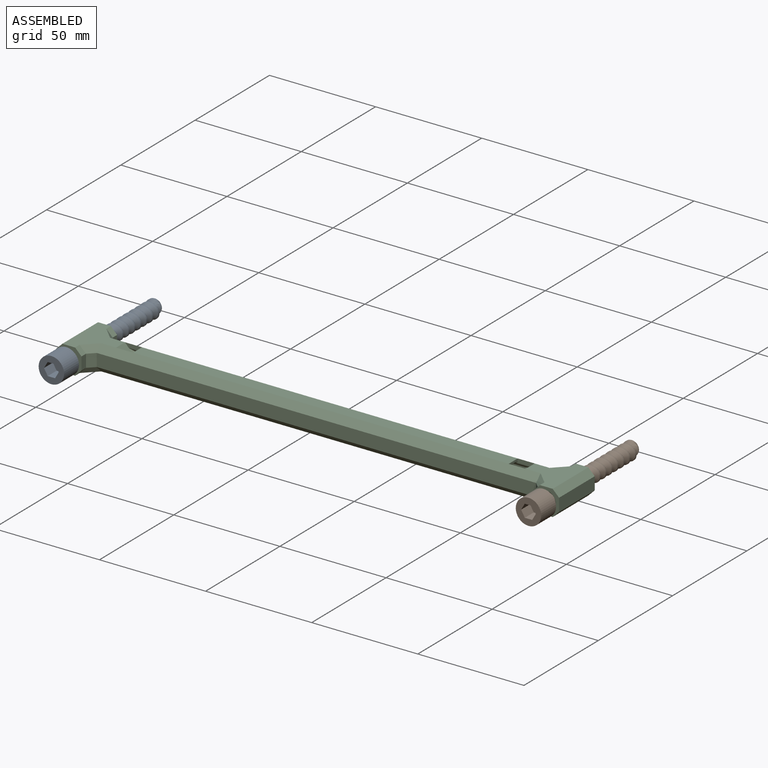
[diagram: assembled view]
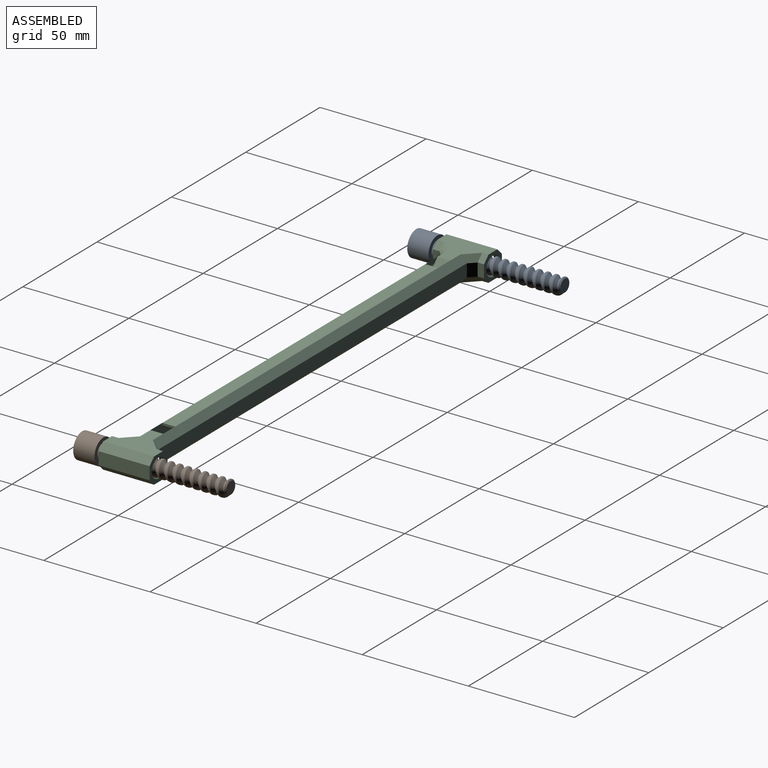
[diagram: assembled view, second angle]
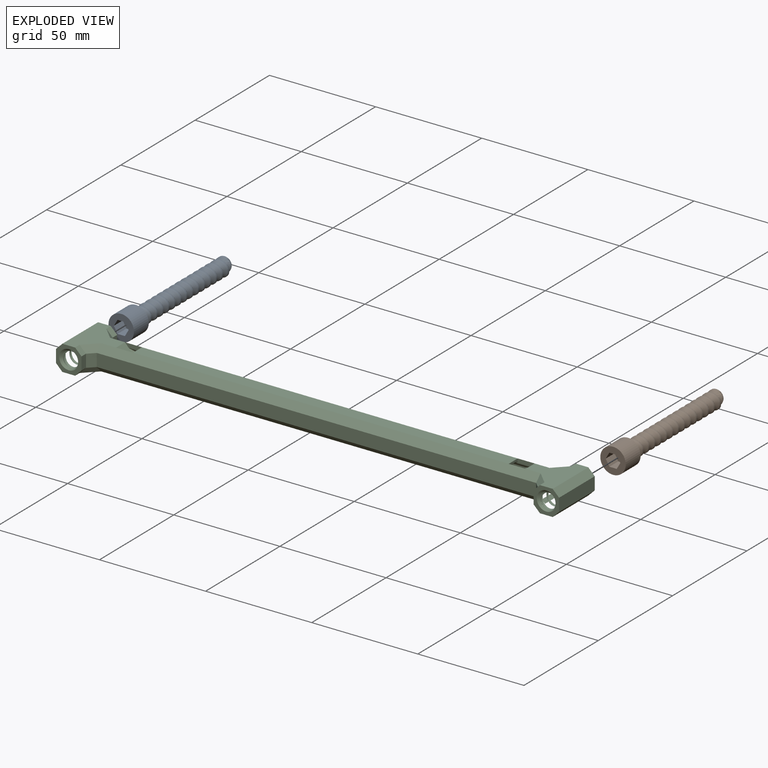
[diagram: exploded view]
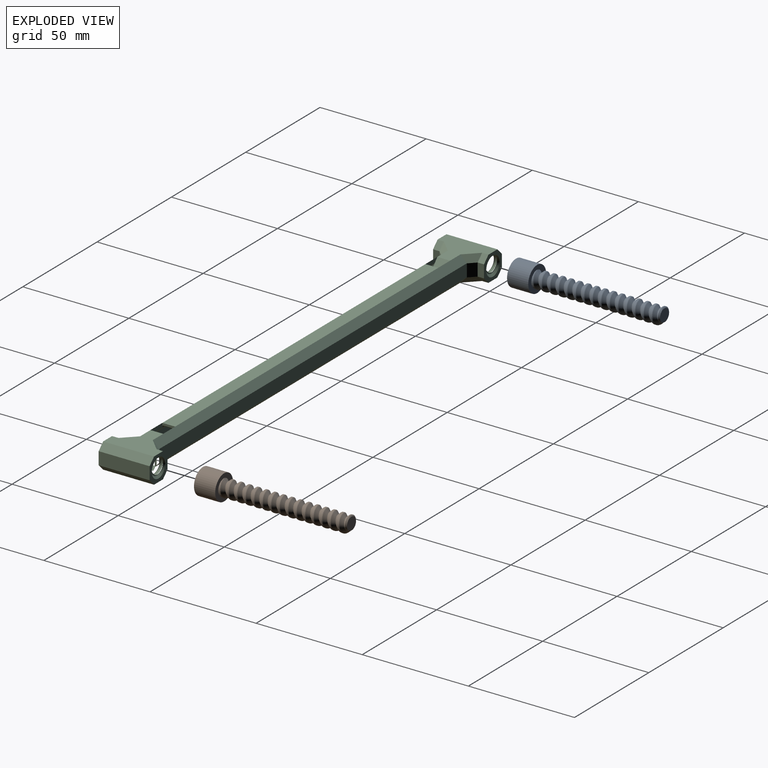
[diagram: exploded view, second angle]
ASSEMBLY  parts=3 mates=2
PART A: 19 faces, bbox 12.6x12.6x72.3 mm
  f0: cylinder r=4mm len=59.54mm, axis (0,0,-1), area 216.1mm2, adj f2,f15,f16,f17,f18
  f1: cylinder r=6mm len=12mm, axis (0,0,-1), area 377mm2, adj f2,f3
  f2: plane 12.64x12.64mm, normal (0,0,1), area 74mm2, adj f0,f1,f12,f13,f17,f18
  f3: plane 12x12mm, normal (0,0,-1), area 81.9mm2, adj f1,f4,f5,f6,f7,f8,f9
  f4: plane 6x3.46mm, normal (0,-1,0), area 20.8mm2, adj f3,f5,f9,f10
  f5: plane 6x3mm, normal (0.87,-0.5,0), area 20.8mm2, adj f3,f4,f6,f10
  f6: plane 6x3mm, normal (0.87,0.5,0), area 20.8mm2, adj f3,f5,f7,f10
  f7: plane 6x3.46mm, normal (0,1,0), area 20.8mm2, adj f3,f6,f8,f10
  f8: plane 6x3mm, normal (-0.87,0.5,0), area 20.8mm2, adj f3,f7,f9,f10
  f9: plane 6x3mm, normal (-0.87,-0.5,0), area 20.8mm2, adj f3,f4,f8,f10
  f10: plane 6.93x6mm, normal (0,0,-1), area 31.2mm2, adj f4,f5,f6,f7,f8,f9
  f11: plane 6.05x5.79mm, normal (0,0,1), area 27.5mm2, adj f14,f15,f16
  f12: bspline ~62.83x9.24mm, area 554.2mm2, adj f2,f13,f15,f18
  f13: bspline ~63.29x9.24mm, area 560.8mm2, adj f2,f12,f14,f15,f16,f17
  f14: bspline ~6.68x3.81mm, area 2.9mm2, adj f11,f13,f15,f16
  f15: bspline ~6.6x3.62mm, area 6.8mm2, adj f0,f11,f12,f13,f14,f16,f18
  f16: cone r=3.54mm half-angle=45deg, axis (0,0,-1), area 2.5mm2, adj f0,f11,f13,f14,f15,f17
  f17: bspline ~60.41x8.01mm, area 137.2mm2, adj f0,f2,f13,f16
  f18: bspline ~60.12x8.01mm, area 136.6mm2, adj f0,f2,f12,f15
PART B: same geometry as A
PART C: 132 faces, bbox 237x24.6x12 mm
  f0: plane 174.48x4.76mm, normal (0,0,1), area 830.1mm2, adj f5,f8,f86,f87
  f1: plane 8.35x1.91mm, normal (0,-1,0), area 13.8mm2, adj f9,f41,f76,f83,f87
  f2: plane 8.35x1.91mm, normal (0,1,0), area 13.8mm2, adj f10,f52,f76,f85,f87
  f3: plane 188.61x2.12mm, normal (0,-0.71,-0.71), area 546.4mm2, adj f6,f9,f77,f78,f79,f83,f89,f91
  f4: plane 188.61x2.12mm, normal (0,0.71,-0.71), area 546.4mm2, adj f7,f10,f77,f81,f82,f85,f88,f90
  f5: plane 175.58x2.12mm, normal (0,-0.71,0.71), area 524.8mm2, adj f0,f6,f86,f87,f89,f91
  f6: plane 182.61x4.76mm, normal (0,-1,0), area 848.8mm2, adj f3,f5,f89,f91
  f7: plane 182.61x4.76mm, normal (0,1,0), area 848.8mm2, adj f4,f8,f88,f90
  f8: plane 175.58x2.12mm, normal (0,0.71,0.71), area 524.8mm2, adj f0,f7,f86,f87,f88,f90
  f9: plane 6.81x0.35mm, normal (0,-0.92,-0.38), area 2.5mm2, adj f1,f3,f83,f89
  f10: plane 6.81x0.35mm, normal (0,0.92,-0.38), area 2.5mm2, adj f2,f4,f85,f88
  f11: plane 24x19mm, normal (0,0,1), area 258mm2, adj f23,f24,f40,f41,f44,f52,f53,f56
  f12: plane 177x6mm, normal (0,0,1), area 1062mm2, adj f41,f52,f75,f76
  f13: plane 24x19mm, normal (0,0,1), area 258mm2, adj f22,f31,f35,f38,f41,f47,f50,f52
  f14: cone r=4.5mm half-angle=45deg, axis (0,-1,0), area 22.2mm2, adj f31,f63,f64,f65,f72
  f15: plane 5.11x2.8mm, normal (0,-1,0), area 1.6mm2, adj f72
  f16: cone r=4.5mm half-angle=45deg, axis (0,-1,0), area 25mm2, adj f23,f66,f67,f68,f71
  f17: plane 3.55x3.52mm, normal (0,-1,0), area 1.3mm2, adj f71
  f18: cone r=4.5mm half-angle=45deg, axis (0,1,0), area 25.1mm2, adj f24,f66,f67,f68,f70
  f19: plane 3.55x3.52mm, normal (0,1,0), area 1.3mm2, adj f70
  f20: cone r=4.5mm half-angle=45deg, axis (0,1,0), area 22.2mm2, adj f22,f63,f64,f65,f69
  f21: plane 5.14x2.76mm, normal (0,1,0), area 1.6mm2, adj f69
  f22: plane 12x12mm, normal (0,1,0), area 62.4mm2, adj f13,f20,f25,f29,f30,f35,f37,f59
  f23: plane 12x12mm, normal (0,-1,0), area 62.4mm2, adj f11,f16,f25,f32,f34,f53,f54,f61
  f24: plane 12x12mm, normal (0,1,0), area 62.4mm2, adj f11,f18,f25,f33,f34,f40,f43,f61
  f25: plane 231x24mm, normal (0,0,-1), area 1674mm2, adj f22,f23,f24,f31,f37,f39,f42,f43
  f26: plane 207x6mm, normal (0,-1,0), area 1242mm2, adj f49,f52,f55,f58
  f27: plane 207x6mm, normal (0,1,0), area 1242mm2, adj f36,f41,f42,f46
  f28: plane 6x3mm, normal (1,0,0), area 18mm2, adj f31,f47,f48,f49
  f29: plane 6x3mm, normal (1,0,0), area 18mm2, adj f22,f35,f36,f37
  f30: plane 24x6mm, normal (-1,0,0), area 144mm2, adj f22,f31,f59,f60
  f31: plane 12x12mm, normal (0,-1,0), area 62.4mm2, adj f13,f14,f25,f28,f30,f47,f48,f59
  f32: plane 6x3mm, normal (-1,0,0), area 18mm2, adj f23,f53,f54,f58
  f33: plane 6x3mm, normal (-1,0,0), area 18mm2, adj f24,f40,f43,f46
  f34: plane 24x6mm, normal (1,0,0), area 144mm2, adj f23,f24,f61,f62
  f35: plane 3x3mm, normal (0.71,0,0.71), area 12.7mm2, adj f13,f22,f29,f38
  f36: plane 6x3mm, normal (0.71,0.71,0), area 25.5mm2, adj f27,f29,f38,f39
  f37: plane 3x3mm, normal (0.71,0,-0.71), area 12.7mm2, adj f22,f25,f29,f39
  f38: plane 6x6mm, normal (0.58,0.58,0.58), area 23.4mm2, adj f13,f35,f36,f41
  f39: plane 6x6mm, normal (0.58,0.58,-0.58), area 23.4mm2, adj f25,f36,f37,f42
  f40: plane 3x3mm, normal (-0.71,0,0.71), area 12.7mm2, adj f11,f24,f33,f44
  f41: plane 207x3mm, normal (0,0.71,0.71), area 878.2mm2, adj f1,f11,f12,f13,f27,f38,f44,f73
  f42: plane 207x3mm, normal (0,0.71,-0.71), area 878.2mm2, adj f25,f27,f39,f45
  f43: plane 3x3mm, normal (-0.71,0,-0.71), area 12.7mm2, adj f24,f25,f33,f45
  f44: plane 6x6mm, normal (-0.58,0.58,0.58), area 23.4mm2, adj f11,f40,f41,f46
  f45: plane 6x6mm, normal (-0.58,0.58,-0.58), area 23.4mm2, adj f25,f42,f43,f46
  f46: plane 6x3mm, normal (-0.71,0.71,0), area 25.5mm2, adj f27,f33,f44,f45
  f47: plane 3x3mm, normal (0.71,0,0.71), area 12.7mm2, adj f13,f28,f31,f50
  f48: plane 3x3mm, normal (0.71,0,-0.71), area 12.7mm2, adj f25,f28,f31,f51
  f49: plane 6x3mm, normal (0.71,-0.71,0), area 25.5mm2, adj f26,f28,f50,f51
  f50: plane 6x6mm, normal (0.58,-0.58,0.58), area 23.4mm2, adj f13,f47,f49,f52
  f51: plane 6x6mm, normal (0.58,-0.58,-0.58), area 23.4mm2, adj f25,f48,f49,f55
  f52: plane 207x3mm, normal (0,-0.71,0.71), area 878.2mm2, adj f2,f11,f12,f13,f26,f50,f56,f74
  f53: plane 3x3mm, normal (-0.71,0,0.71), area 12.7mm2, adj f11,f23,f32,f56
  f54: plane 3x3mm, normal (-0.71,0,-0.71), area 12.7mm2, adj f23,f25,f32,f57
  f55: plane 207x3mm, normal (0,-0.71,-0.71), area 878.2mm2, adj f25,f26,f51,f57
  f56: plane 6x6mm, normal (-0.58,-0.58,0.58), area 23.4mm2, adj f11,f52,f53,f58
  f57: plane 6x6mm, normal (-0.58,-0.58,-0.58), area 23.4mm2, adj f25,f54,f55,f58
  f58: plane 6x3mm, normal (-0.71,-0.71,0), area 25.5mm2, adj f26,f32,f56,f57
  f59: plane 24x3mm, normal (-0.71,0,0.71), area 101.8mm2, adj f13,f22,f30,f31
  f60: plane 24x3mm, normal (-0.71,0,-0.71), area 101.8mm2, adj f22,f25,f30,f31
  f61: plane 24x3mm, normal (0.71,0,0.71), area 101.8mm2, adj f11,f23,f24,f34
  f62: plane 24x3mm, normal (0.71,0,-0.71), area 101.8mm2, adj f23,f24,f25,f34
  f63: cylinder r=4.1mm len=23.79mm, axis (0,-1,0), area 90.5mm2, adj f14,f20,f64,f65
  f64: bspline ~24.48x8.21mm, area 66mm2, adj f14,f20,f63
  f65: bspline ~24.42x8.21mm, area 66mm2, adj f14,f20,f63
  f66: cylinder r=4.1mm len=23.2mm, axis (0,-1,0), area 93.5mm2, adj f16,f18,f67,f68
  f67: bspline ~23.89x8.21mm, area 65.1mm2, adj f16,f18,f66
  f68: bspline ~24.06x8.21mm, area 65.1mm2, adj f16,f18,f66
  f69: torus R=3.29mm, axis (0,1,0), area 3.5mm2, adj f20,f21
  f70: torus R=3.29mm, axis (0,1,0), area 3.2mm2, adj f18,f19
  f71: torus R=3.29mm, axis (0,-1,0), area 3.2mm2, adj f16,f17
  f72: torus R=3.29mm, axis (0,-1,0), area 3.5mm2, adj f14,f15
  f73: plane 8.35x1.91mm, normal (0,-1,0), area 13.8mm2, adj f41,f75,f78,f79,f86
  f74: plane 8.35x1.91mm, normal (0,1,0), area 13.8mm2, adj f52,f75,f81,f82,f86
  f75: plane 6x1.41mm, normal (-1,0,0), area 6.2mm2, adj f12,f73,f74,f79,f80,f81
  f76: plane 6x1.41mm, normal (1,0,0), area 6.2mm2, adj f1,f2,f12,f83,f84,f85
  f77: plane 176x4.76mm, normal (0,0,-1), area 837.3mm2, adj f3,f4,f80,f84
  f78: plane 6.81x0.35mm, normal (0,-0.92,-0.38), area 2.5mm2, adj f3,f73,f79,f91
  f79: plane 1.27x0.77mm, normal (-0.71,-0.5,-0.5), area 0.5mm2, adj f3,f73,f75,f78,f80
  f80: plane 5.17x0.5mm, normal (-0.71,0,-0.71), area 3.5mm2, adj f75,f77,f79,f81
  f81: plane 1.27x0.77mm, normal (-0.71,0.5,-0.5), area 0.5mm2, adj f4,f74,f75,f80,f82
  f82: plane 6.81x0.35mm, normal (0,0.92,-0.38), area 2.5mm2, adj f4,f74,f81,f90
  f83: plane 1.27x0.77mm, normal (0.71,-0.5,-0.5), area 0.5mm2, adj f1,f3,f9,f76,f84
  f84: plane 5.17x0.5mm, normal (0.71,0,-0.71), area 3.5mm2, adj f76,f77,f83,f85
  f85: plane 1.27x0.77mm, normal (0.71,0.5,-0.5), area 0.5mm2, adj f2,f4,f10,f76,f84
  f86: plane 10.5x9.26mm, normal (0.75,0,0.66), area 83.5mm2, adj f0,f5,f8,f13,f73,f74,f90,f91
  f87: plane 10.5x9.26mm, normal (-0.75,0,0.66), area 83.5mm2, adj f0,f1,f2,f5,f8,f11,f88,f89
  f88: plane 7.96x7.7mm, normal (-0.53,0.71,0.47), area 17.7mm2, adj f4,f7,f8,f10,f87
  f89: plane 7.96x7.7mm, normal (-0.53,-0.71,0.47), area 17.7mm2, adj f3,f5,f6,f9,f87
  f90: plane 7.96x7.7mm, normal (0.53,0.71,0.47), area 17.7mm2, adj f4,f7,f8,f82,f86
  f91: plane 7.96x7.7mm, normal (0.53,-0.71,0.47), area 17.7mm2, adj f3,f5,f6,f78,f86
  f92: plane 2.38x2.38mm, normal (-0.58,-0.58,-0.58), area 3.5mm2, adj f94,f99,f100,f102,f106,f107
  f93: plane 2.38x2.38mm, normal (-0.58,-0.58,0.58), area 3.5mm2, adj f94,f98,f100,f103,f107,f111
  f94: plane 5.05x0.88mm, normal (-0.71,-0.71,0), area 6.3mm2, adj f92,f93,f100,f107
  f95: plane 2.38x2.38mm, normal (-0.58,0.58,-0.58), area 3.5mm2, adj f97,f99,f101,f102,f108,f109
  f96: plane 2.38x2.38mm, normal (-0.58,0.58,0.58), area 3.5mm2, adj f97,f98,f101,f103,f109,f110
  f97: plane 5.05x0.88mm, normal (-0.71,0.71,0), area 6.3mm2, adj f95,f96,f101,f109
  f98: plane 12.8x1.9mm, normal (0,0,1), area 17.1mm2, adj f93,f96,f103,f105,f110,f111
  f99: plane 12.8x1.9mm, normal (0,0,-1), area 17.1mm2, adj f92,f95,f102,f104,f106,f108
  f100: plane 6x0.88mm, normal (1,0,0), area 5mm2, adj f92,f93,f94,f102,f103,f107
  f101: plane 6x0.88mm, normal (1,0,0), area 5mm2, adj f95,f96,f97,f102,f103,f109
  f102: plane 12.8x1.5mm, normal (0.71,0,0.71), area 27.2mm2, adj f92,f95,f99,f100,f101,f104
  f103: plane 12.8x1.5mm, normal (0.71,0,-0.71), area 27.2mm2, adj f93,f96,f98,f100,f101,f105
  f104: plane 12x1.5mm, normal (-1,0,0), area 15.7mm2, adj f99,f102,f106,f108
  f105: plane 12x1.5mm, normal (-1,0,0), area 15.8mm2, adj f98,f103,f110,f111
  f106: plane 1.5x1.5mm, normal (0,0.71,0.71), area 0.9mm2, adj f92,f99,f104,f107
  f107: plane 6x0.88mm, normal (0,1,0), area 5mm2, adj f92,f93,f94,f100,f106,f111
  f108: plane 1.5x1.5mm, normal (0,-0.71,0.71), area 0.9mm2, adj f95,f99,f104,f109
  f109: plane 6x0.88mm, normal (0,-1,0), area 5mm2, adj f95,f96,f97,f101,f108,f110
  f110: plane 1.5x1.5mm, normal (0,-0.71,-0.71), area 0.9mm2, adj f96,f98,f105,f109
  f111: plane 1.5x1.5mm, normal (0,0.71,-0.71), area 0.9mm2, adj f93,f98,f105,f107
  f112: plane 2.38x2.38mm, normal (0.58,0.58,0.58), area 3.5mm2, adj f118,f119,f121,f123,f125,f130
  f113: plane 2.38x2.38mm, normal (0.58,-0.58,0.58), area 3.5mm2, adj f117,f119,f120,f123,f124,f131
  f114: plane 12.8x1.9mm, normal (0,0,-1), area 17.1mm2, adj f115,f116,f122,f127,f128,f129
  f115: plane 2.38x2.38mm, normal (0.58,0.58,-0.58), area 3.5mm2, adj f114,f118,f121,f122,f125,f128
  f116: plane 2.38x2.38mm, normal (0.58,-0.58,-0.58), area 3.5mm2, adj f114,f117,f120,f122,f124,f129
  f117: plane 5.05x0.88mm, normal (0.71,-0.71,0), area 6.3mm2, adj f113,f116,f120,f124
  f118: plane 5.05x0.88mm, normal (0.71,0.71,0), area 6.3mm2, adj f112,f115,f121,f125
  f119: plane 12.8x1.9mm, normal (0,0,1), area 17.1mm2, adj f112,f113,f123,f126,f130,f131
  f120: plane 6x0.88mm, normal (-1,0,0), area 5mm2, adj f113,f116,f117,f122,f123,f124
  f121: plane 6x0.88mm, normal (-1,0,0), area 5mm2, adj f112,f115,f118,f122,f123,f125
  f122: plane 12.8x1.5mm, normal (-0.71,0,0.71), area 27.2mm2, adj f114,f115,f116,f120,f121,f127
  f123: plane 12.8x1.5mm, normal (-0.71,0,-0.71), area 27.2mm2, adj f112,f113,f119,f120,f121,f126
  f124: plane 6x0.88mm, normal (0,1,0), area 5mm2, adj f113,f116,f117,f120,f129,f131
  f125: plane 6x0.88mm, normal (0,-1,0), area 5mm2, adj f112,f115,f118,f121,f128,f130
  f126: plane 12x1.5mm, normal (1,0,0), area 15.7mm2, adj f119,f123,f130,f131
  f127: plane 12x1.5mm, normal (1,0,0), area 15.8mm2, adj f114,f122,f128,f129
  f128: plane 1.5x1.5mm, normal (0,-0.71,0.71), area 0.9mm2, adj f114,f115,f125,f127
  f129: plane 1.5x1.5mm, normal (0,0.71,0.71), area 0.9mm2, adj f114,f116,f124,f127
  f130: plane 1.5x1.5mm, normal (0,-0.71,-0.71), area 0.9mm2, adj f112,f119,f125,f126
  f131: plane 1.5x1.5mm, normal (0,0.71,-0.71), area 0.9mm2, adj f113,f119,f124,f126
PLACE A rot(axis=(-1,0,0),90deg) t=(-152.3,-36.24,16.52)mm
PLACE B rot(axis=(-1,0,0),90deg) t=(72.48,-36.24,16.3)mm
PLACE C t=(-40.02,-12.24,16.3)mm
MATE fastened A.f2 <-> C.f14  axis (0,1,0) through (-152.52,-26.24,16.3)mm
MATE fastened B.f1 <-> C.f16  axis (0,1,0) through (72.48,-26.24,16.3)mm
